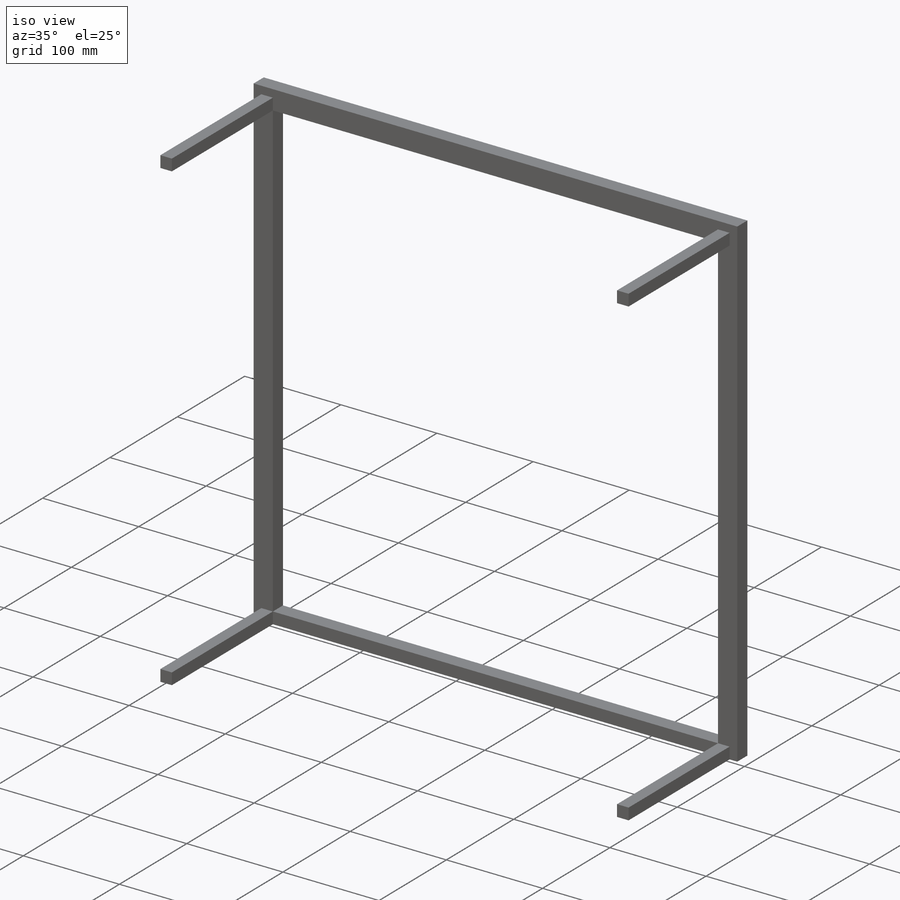
[diagram: iso view]
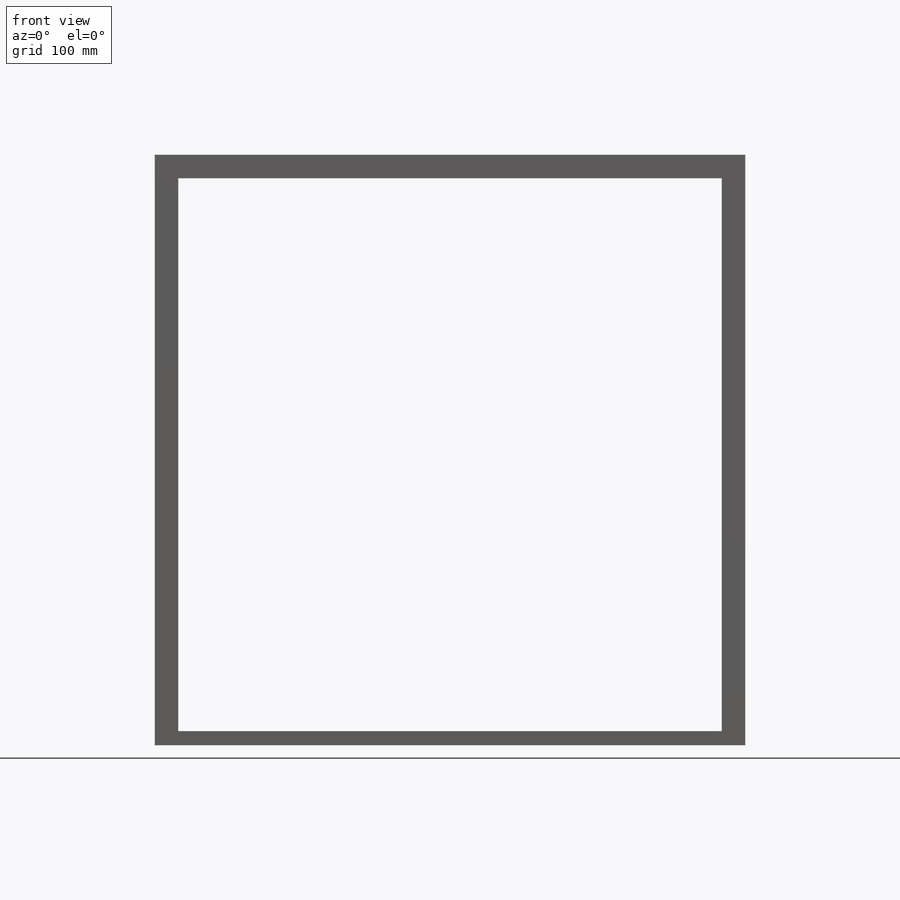
[diagram: front view]
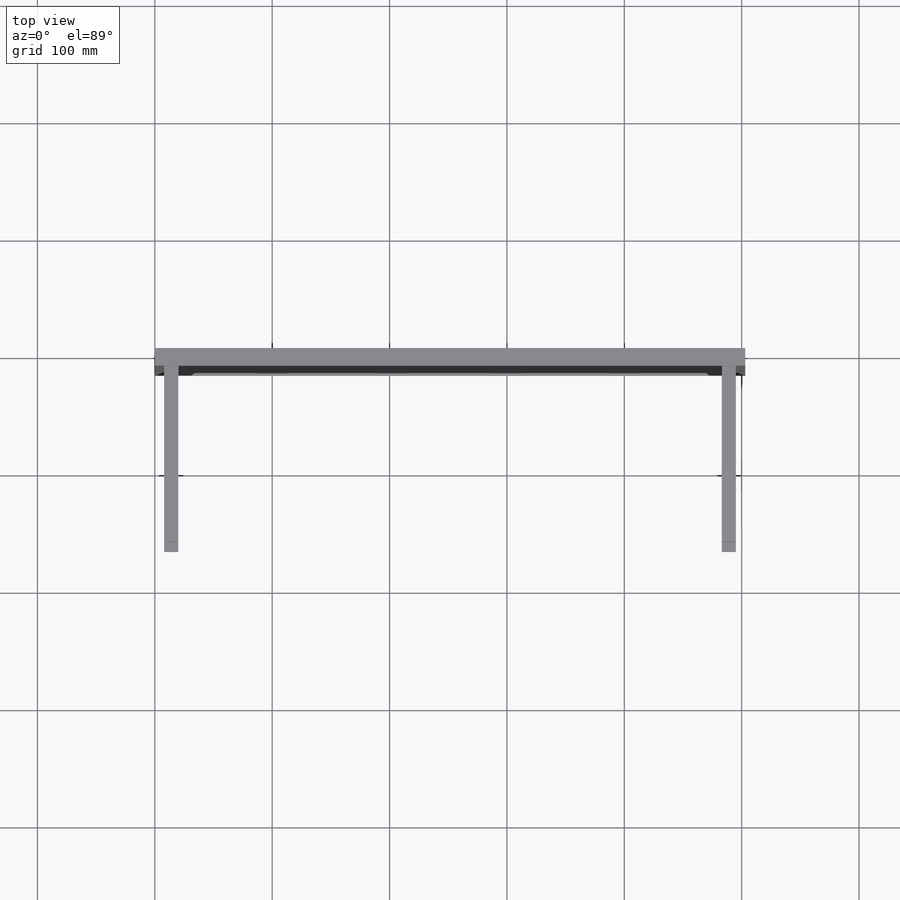
[diagram: top view]
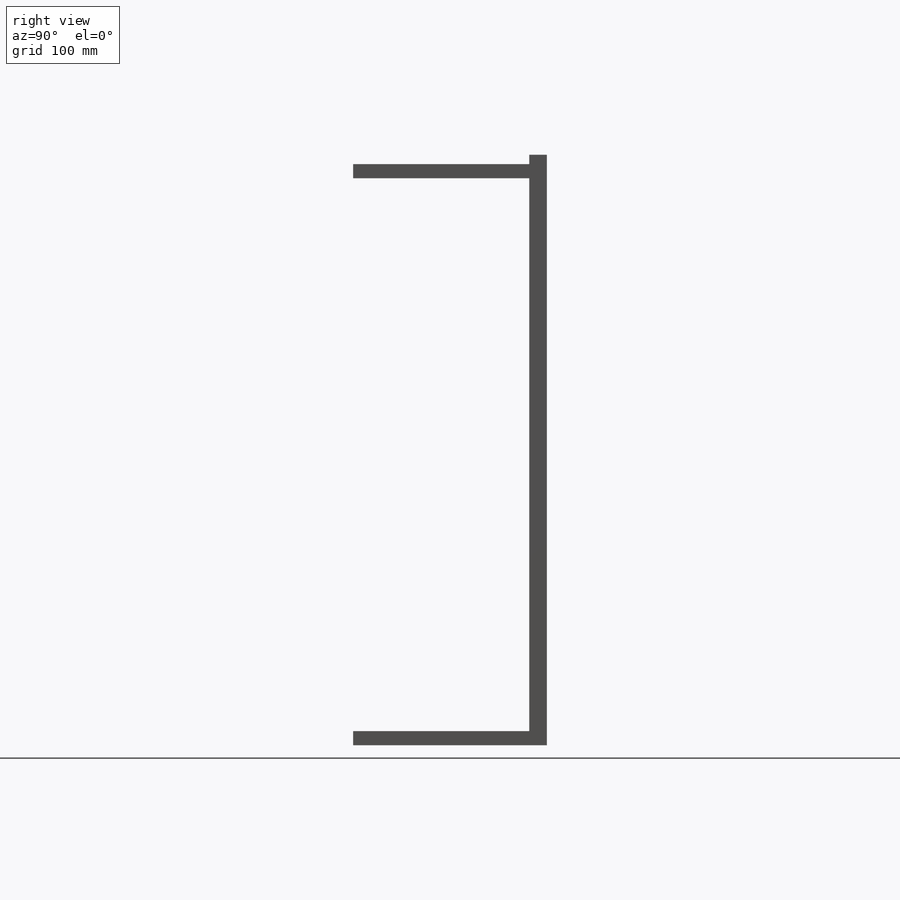
[diagram: right view]
SOLIDWORKS PART (.sldprt)
format: sldprt  version: not decoded by parser v0  size: 196,096 bytes
history: native  units: mm
features: sketch x3, extrude x2, material x1, cut_extrude x1 (+13 scaffold rows collapsed)
feature tree (20):
  scaffold x13  (default folders/planes/origin — collapsed)
  material  "Material <not specified>"
  sketch  "Sketch1"  dims[D1=503.0mm D2=503.0mm D3=20.0mm D4=20.0mm D5=20.0mm D6=12.0mm]
  extrude  "Boss-Extrude1"  Depth=15mm
  sketch  "Sketch2"  dims[D1=12.0mm D2=12.0mm D3=12.0mm D4=12.0mm D5=12.0mm D6=12.0mm]
  extrude  "Boss-Extrude2"  Depth=200mm
  sketch  "Sketch3"
  cut_extrude  "Cut-Extrude1"  Depth=50mm
decode coverage: 5 of 6 modeling features carry decoded parameters
note: suppression state not decoded; provenance and decode notes live in map.json
